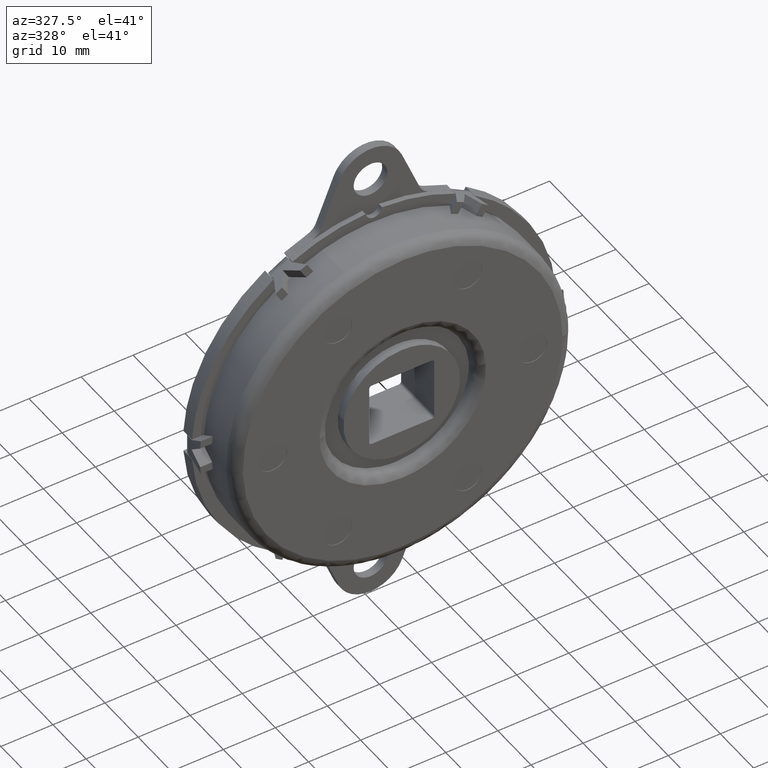
[diagram: clean part render]
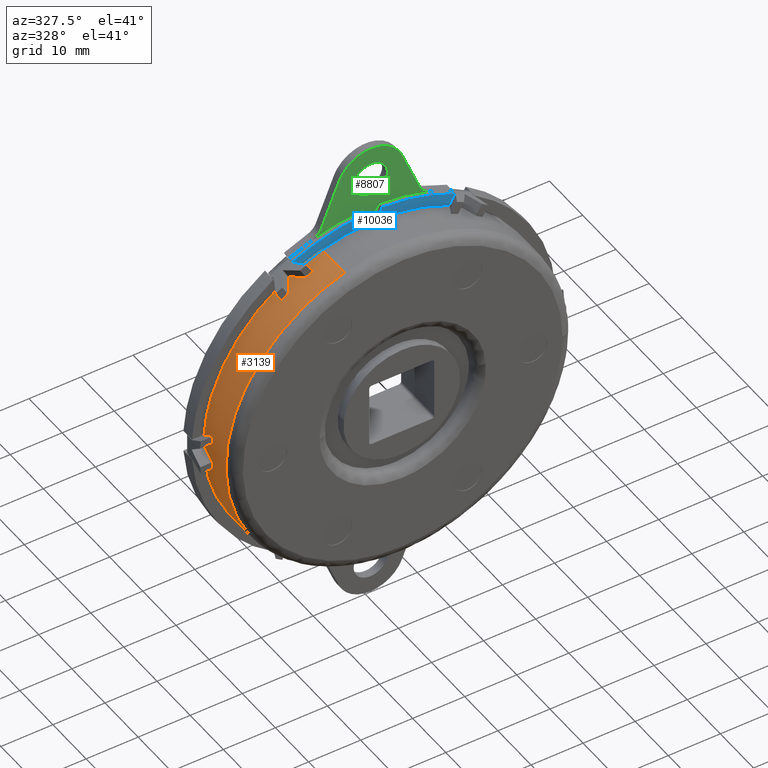
[diagram: same view with three faces highlighted in distinct colors, each labeled with its STEP entity id]
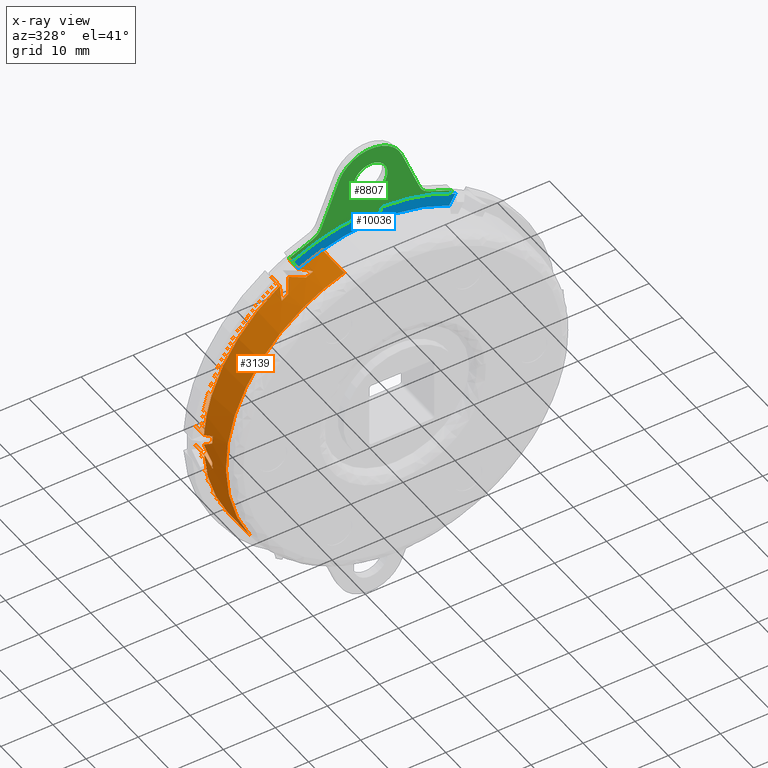
[diagram: x-ray of the same camera — body ghosted, the three highlighted faces saturated]
A machine part, auxiliary view with three faces highlighted in distinct colors.
The next image is the same camera in x-ray (body ghosted, the three faces saturated) — at least one of them is partly hidden behind the body in this view.
Their STEP definitions:

[orange] entity #3139 — the highlighted face is a freeform B-spline surface patch.
#2523=CARTESIAN_POINT('',(-9.911126072560093,0.232500000000649,31.161828893276134));
#2524=CARTESIAN_POINT('',(-13.610025779075269,0.232500000000649,29.985381212795552));
#2525=CARTESIAN_POINT('',(-16.930733918043060,0.232500000000649,27.975708194725389));
#2526=CARTESIAN_POINT('',(-44.906442112768460,0.232500000000649,11.044974276682328));
#2527=CARTESIAN_POINT('',(-27.975708194725389,0.232500000000649,-16.930733918043060));
#2528=CARTESIAN_POINT('',(-9.911126072560093,-9.538312500026613,31.161828893276134));
#2529=CARTESIAN_POINT('',(-13.610025779075269,-9.538312500026615,29.985381212795552));
#2530=CARTESIAN_POINT('',(-16.930733918043060,-9.538312500026613,27.975708194725389));
#2531=CARTESIAN_POINT('',(-44.906442112768460,-9.538312500026613,11.044974276682328));
#2532=CARTESIAN_POINT('',(-27.975708194725389,-9.538312500026613,-16.930733918043060));
#2540=(BOUNDED_SURFACE()B_SPLINE_SURFACE(2,1,((#2523,#2528),(#2524,#2529),(#2525,#2530),(#2526,#2531),(#2527,#2532)),.UNSPECIFIED.,.F.,.F.,.U.)B_SPLINE_SURFACE_WITH_KNOTS((3,2,3),(2,2),(0.0,8.668661433344145,62.847795391744967),(0.0,9.770812500027263),.UNSPECIFIED.)GEOMETRIC_REPRESENTATION_ITEM()RATIONAL_B_SPLINE_SURFACE(((0.921270302782944,0.921270302782944),(0.953137084989848,0.953137084989848),(1.0,1.0),(0.707106781186548,0.707106781186548),(1.0,1.0)))REPRESENTATION_ITEM('')SURFACE());
#2541=CARTESIAN_POINT('',(-27.975708191630559,-9.299999999999999,-16.930733923156868));
#2542=VERTEX_POINT('',#2541);
#2543=CARTESIAN_POINT('',(-9.911116520391543,-9.300000000002612,31.161831931372731));
#2544=VERTEX_POINT('',#2543);
#2545=CARTESIAN_POINT('',(-27.975708191630556,-9.299999999999999,-16.930733923156861));
#2546=CARTESIAN_POINT('',(-32.700000000000003,-9.299999999999999,-9.124491760922808));
#2547=CARTESIAN_POINT('',(-32.700000000000003,-9.299999999999999,-9.985231E-016));
#2548=CARTESIAN_POINT('',(-32.700000000000003,-9.299999999999999,23.913757426850960));
#2549=CARTESIAN_POINT('',(-9.911116520391543,-9.300000000002610,31.161831931372728));
#2557=(BOUNDED_CURVE()B_SPLINE_CURVE(2,(#2545,#2546,#2547,#2548,#2549),.UNSPECIFIED.,.F.,.U.)B_SPLINE_CURVE_WITH_KNOTS((3,2,3),(0.661566878939091,0.750000000000000,0.948444082053366),.UNSPECIFIED.)CURVE()GEOMETRIC_REPRESENTATION_ITEM()RATIONAL_B_SPLINE_CURVE((0.866085814693111,0.896394154091002,1.0,0.767508296211635,0.904109414369711))REPRESENTATION_ITEM(''));
#2558=EDGE_CURVE('',#2542,#2544,#2557,.T.);
#2559=ORIENTED_EDGE('',*,*,#2558,.T.);
#2560=CARTESIAN_POINT('',(-9.911141284202683,-2.599999999999935,31.161824551527118));
#2561=VERTEX_POINT('',#2560);
#2562=CARTESIAN_POINT('',(-9.911141284202683,-2.599999999999935,31.161824551527118));
#2563=CARTESIAN_POINT('',(-9.911116520391543,-9.300000000002612,31.161831931372731));
#2564=QUASI_UNIFORM_CURVE('',1,(#2562,#2563),.UNSPECIFIED.,.F.,.U.);
#2565=EDGE_CURVE('',#2561,#2544,#2564,.T.);
#2566=ORIENTED_EDGE('',*,*,#2565,.F.);
#2567=CARTESIAN_POINT('',(-14.497596722151600,-2.599999999999935,29.310574110410400));
#2568=VERTEX_POINT('',#2567);
#2569=CARTESIAN_POINT('',(-9.911141284202683,-2.599999999999935,31.161824551527118));
#2570=CARTESIAN_POINT('',(-12.274572009019773,-2.599999999999934,30.410126602537602));
#2571=CARTESIAN_POINT('',(-14.497596722151600,-2.599999999999935,29.310574110410400));
#2579=(BOUNDED_CURVE()B_SPLINE_CURVE(2,(#2569,#2570,#2571),.UNSPECIFIED.,.F.,.U.)B_SPLINE_CURVE_WITH_KNOTS((3,3),(0.831911339087718,1.0),.UNSPECIFIED.)CURVE()GEOMETRIC_REPRESENTATION_ITEM()RATIONAL_B_SPLINE_CURVE((0.971011618947447,0.982577241293320,1.0))REPRESENTATION_ITEM(''));
#2580=EDGE_CURVE('',#2561,#2568,#2579,.T.);
#2581=ORIENTED_EDGE('',*,*,#2580,.T.);
#2582=CARTESIAN_POINT('',(-14.497596722151560,-1.610000000000000,29.310574110410450));
#2583=VERTEX_POINT('',#2582);
#2584=CARTESIAN_POINT('',(-14.497596722151600,-2.599999999999935,29.310574110410400));
#2585=CARTESIAN_POINT('',(-14.497596722151560,-1.610000000000000,29.310574110410450));
#2586=QUASI_UNIFORM_CURVE('',1,(#2584,#2585),.UNSPECIFIED.,.F.,.U.);
#2587=EDGE_CURVE('',#2568,#2583,#2586,.T.);
#2588=ORIENTED_EDGE('',*,*,#2587,.T.);
#2589=CARTESIAN_POINT('',(-9.911126224100403,-1.610000000000000,31.161829369758589));
#2590=VERTEX_POINT('',#2589);
#2591=CARTESIAN_POINT('',(-9.911126224100403,-1.609999999999999,31.161829369758596));
#2592=CARTESIAN_POINT('',(-12.274564889433762,-1.610000000000000,30.410130157652805));
#2593=CARTESIAN_POINT('',(-14.497596722151551,-1.610000000000000,29.310574110410421));
#2601=(BOUNDED_CURVE()B_SPLINE_CURVE(2,(#2591,#2592,#2593),.UNSPECIFIED.,.F.,.U.)B_SPLINE_CURVE_WITH_KNOTS((3,3),(0.831910810136597,1.0),.UNSPECIFIED.)CURVE()GEOMETRIC_REPRESENTATION_ITEM()RATIONAL_B_SPLINE_CURVE((0.971011546156767,0.982577186466375,1.0))REPRESENTATION_ITEM(''));
#2602=EDGE_CURVE('',#2590,#2583,#2601,.T.);
#2603=ORIENTED_EDGE('',*,*,#2602,.F.);
#2604=CARTESIAN_POINT('',(-9.911141292130900,-1.599999999972468,31.161824577312029));
#2605=VERTEX_POINT('',#2604);
#2606=CARTESIAN_POINT('',(-9.911141292130900,-1.599999999972468,31.161824577312029));
#2607=CARTESIAN_POINT('',(-9.911126224100403,-1.610000000000000,31.161829369758589));
#2608=QUASI_UNIFORM_CURVE('',1,(#2606,#2607),.UNSPECIFIED.,.F.,.U.);
#2609=EDGE_CURVE('',#2605,#2590,#2608,.T.);
#2610=ORIENTED_EDGE('',*,*,#2609,.F.);
#2611=CARTESIAN_POINT('',(-14.497596722151560,-1.600000000000045,29.310574110410450));
#2612=VERTEX_POINT('',#2611);
#2613=CARTESIAN_POINT('',(-9.911141292130900,-1.599999999972468,31.161824577312025));
#2614=CARTESIAN_POINT('',(-12.274572016637046,-1.600000000000045,30.410126632395379));
#2615=CARTESIAN_POINT('',(-14.497596722151551,-1.600000000000045,29.310574110410421));
#2623=(BOUNDED_CURVE()B_SPLINE_CURVE(2,(#2613,#2614,#2615),.UNSPECIFIED.,.F.,.U.)B_SPLINE_CURVE_WITH_KNOTS((3,3),(0.831911339653649,1.0),.UNSPECIFIED.)CURVE()GEOMETRIC_REPRESENTATION_ITEM()RATIONAL_B_SPLINE_CURVE((0.971011619025327,0.982577241351980,1.0))REPRESENTATION_ITEM(''));
#2624=EDGE_CURVE('',#2605,#2612,#2623,.T.);
#2625=ORIENTED_EDGE('',*,*,#2624,.T.);
#2626=CARTESIAN_POINT('',(-14.497596722151600,0.0,29.310574110410400));
#2627=VERTEX_POINT('',#2626);
#2628=CARTESIAN_POINT('',(-14.497596722151560,-1.600000000000045,29.310574110410450));
#2629=CARTESIAN_POINT('',(-14.497596722151600,0.0,29.310574110410400));
#2630=QUASI_UNIFORM_CURVE('',1,(#2628,#2629),.UNSPECIFIED.,.F.,.U.);
#2631=EDGE_CURVE('',#2612,#2627,#2630,.T.);
#2632=ORIENTED_EDGE('',*,*,#2631,.T.);
#2633=CARTESIAN_POINT('',(-14.587340000607860,0.0,29.266014028334400));
#2634=VERTEX_POINT('',#2633);
#2635=CARTESIAN_POINT('',(-14.497596722151609,0.0,29.310574110410389));
#2636=CARTESIAN_POINT('',(-14.542502495903378,0.0,29.288362815745987));
#2637=CARTESIAN_POINT('',(-14.587340000607870,0.0,29.266014028334411));
#2645=(BOUNDED_CURVE()B_SPLINE_CURVE(2,(#2635,#2636,#2637),.UNSPECIFIED.,.F.,.U.)CURVE()GEOMETRIC_REPRESENTATION_ITEM()QUASI_UNIFORM_CURVE()RATIONAL_B_SPLINE_CURVE((1.0,0.999998826386876,1.0))REPRESENTATION_ITEM(''));
#2646=EDGE_CURVE('',#2627,#2634,#2645,.T.);
#2647=ORIENTED_EDGE('',*,*,#2646,.T.);
#2648=CARTESIAN_POINT('',(-14.587340000607860,-2.599999999999935,29.266014028334400));
#2649=VERTEX_POINT('',#2648);
#2650=CARTESIAN_POINT('',(-14.587340000607860,-2.599999999999935,29.266014028334400));
#2651=CARTESIAN_POINT('',(-14.587340000607860,0.0,29.266014028334400));
#2652=QUASI_UNIFORM_CURVE('',1,(#2650,#2651),.UNSPECIFIED.,.F.,.U.);
#2653=EDGE_CURVE('',#2649,#2634,#2652,.T.);
#2654=ORIENTED_EDGE('',*,*,#2653,.F.);
#2655=CARTESIAN_POINT('',(-14.561896972792420,-2.599999999999935,29.278682039220602));
#2656=VERTEX_POINT('',#2655);
#2657=CARTESIAN_POINT('',(-14.561896972792439,-2.599999999999935,29.278682039220609));
#2658=CARTESIAN_POINT('',(-14.574621239407177,-2.599999999999935,29.272353562438422));
#2659=CARTESIAN_POINT('',(-14.587340000607870,-2.599999999999935,29.266014028334411));
#2667=(BOUNDED_CURVE()B_SPLINE_CURVE(2,(#2657,#2658,#2659),.UNSPECIFIED.,.F.,.U.)CURVE()GEOMETRIC_REPRESENTATION_ITEM()QUASI_UNIFORM_CURVE()RATIONAL_B_SPLINE_CURVE((1.0,0.999999905565124,1.0))REPRESENTATION_ITEM(''));
#2668=EDGE_CURVE('',#2656,#2649,#2667,.T.);
#2669=ORIENTED_EDGE('',*,*,#2668,.F.);
#2670=CARTESIAN_POINT('',(-13.224986873979381,-5.062030000000160,29.906349195163749));
#2671=VERTEX_POINT('',#2670);
#2672=CARTESIAN_POINT('',(-13.224986873979381,-5.062030000000160,29.906349195163749));
#2673=CARTESIAN_POINT('',(-13.900531007889809,-3.833374617001016,29.607615104253000));
#2674=CARTESIAN_POINT('',(-14.561896972792420,-2.599999999999935,29.278682039220602));
#2682=(BOUNDED_CURVE()B_SPLINE_CURVE(2,(#2672,#2673,#2674),.UNSPECIFIED.,.F.,.U.)CURVE()GEOMETRIC_REPRESENTATION_ITEM()QUASI_UNIFORM_CURVE()RATIONAL_B_SPLINE_CURVE((1.0,0.999744974164710,1.0))REPRESENTATION_ITEM(''));
#2683=EDGE_CURVE('',#2671,#2656,#2682,.T.);
#2684=ORIENTED_EDGE('',*,*,#2683,.F.);
#2685=CARTESIAN_POINT('',(-14.587339499669660,-5.062030000000160,29.266013160684100));
#2686=VERTEX_POINT('',#2685);
#2687=CARTESIAN_POINT('',(-14.587339499669660,-5.062030000000160,29.266013160684100));
#2688=CARTESIAN_POINT('',(-13.913534562946600,-5.062030000000160,29.601864214757910));
#2689=CARTESIAN_POINT('',(-13.224986873979400,-5.062030000000160,29.906349195163770));
#2697=(BOUNDED_CURVE()B_SPLINE_CURVE(2,(#2687,#2688,#2689),.UNSPECIFIED.,.F.,.U.)CURVE()GEOMETRIC_REPRESENTATION_ITEM()QUASI_UNIFORM_CURVE()RATIONAL_B_SPLINE_CURVE((1.0,0.999735065425534,1.0))REPRESENTATION_ITEM(''));
#2698=EDGE_CURVE('',#2686,#2671,#2697,.T.);
#2699=ORIENTED_EDGE('',*,*,#2698,.F.);
#2700=CARTESIAN_POINT('',(-16.317232154714500,-2.599999999999965,28.337923967876549));
#2701=VERTEX_POINT('',#2700);
#2702=CARTESIAN_POINT('',(-16.317232154714500,-2.599999999999965,28.337923967876549));
#2703=CARTESIAN_POINT('',(-15.466221460405498,-3.832167991774810,28.827943599552658));
#2704=CARTESIAN_POINT('',(-14.587339499669660,-5.062030000000160,29.266013160684100));
#2712=(BOUNDED_CURVE()B_SPLINE_CURVE(2,(#2702,#2703,#2704),.UNSPECIFIED.,.F.,.U.)CURVE()GEOMETRIC_REPRESENTATION_ITEM()QUASI_UNIFORM_CURVE()RATIONAL_B_SPLINE_CURVE((1.0,0.999549380120241,1.0))REPRESENTATION_ITEM(''));
#2713=EDGE_CURVE('',#2701,#2686,#2712,.T.);
#2714=ORIENTED_EDGE('',*,*,#2713,.F.);
#2715=CARTESIAN_POINT('',(-16.382745969335598,-2.599999999999965,28.300099549369399));
#2716=VERTEX_POINT('',#2715);
#2717=CARTESIAN_POINT('',(-16.317232154714489,-2.599999999999965,28.337923967876542));
#2718=CARTESIAN_POINT('',(-16.350010937982834,-2.599999999999965,28.319049648891671));
#2719=CARTESIAN_POINT('',(-16.382745969335591,-2.599999999999965,28.300099549369410));
#2727=(BOUNDED_CURVE()B_SPLINE_CURVE(2,(#2717,#2718,#2719),.UNSPECIFIED.,.F.,.U.)CURVE()GEOMETRIC_REPRESENTATION_ITEM()QUASI_UNIFORM_CURVE()RATIONAL_B_SPLINE_CURVE((1.0,0.999999331010711,1.0))REPRESENTATION_ITEM(''));
#2728=EDGE_CURVE('',#2701,#2716,#2727,.T.);
#2729=ORIENTED_EDGE('',*,*,#2728,.T.);
#2730=CARTESIAN_POINT('',(-18.051441114807702,-5.062030000000160,27.266013160684651));
#2731=VERTEX_POINT('',#2730);
#2732=CARTESIAN_POINT('',(-18.051441114807702,-5.062030000000160,27.266013160684651));
#2733=CARTESIAN_POINT('',(-17.232620765883606,-3.832167991788125,27.808112485037793));
#2734=CARTESIAN_POINT('',(-16.382745969335620,-2.599999999999945,28.300099549369399));
#2742=(BOUNDED_CURVE()B_SPLINE_CURVE(2,(#2732,#2733,#2734),.UNSPECIFIED.,.F.,.U.)CURVE()GEOMETRIC_REPRESENTATION_ITEM()QUASI_UNIFORM_CURVE()RATIONAL_B_SPLINE_CURVE((1.0,0.999549380119082,1.0))REPRESENTATION_ITEM(''));
#2743=EDGE_CURVE('',#2731,#2716,#2742,.T.);
#2744=ORIENTED_EDGE('',*,*,#2743,.F.);
#2745=CARTESIAN_POINT('',(-19.287172822463450,-5.062030000000160,26.406343262868251));
#2746=VERTEX_POINT('',#2745);
#2747=CARTESIAN_POINT('',(-19.287172822463461,-5.062030000000160,26.406343262868241));
#2748=CARTESIAN_POINT('',(-18.679203323310833,-5.062030000000160,26.850403717745074));
#2749=CARTESIAN_POINT('',(-18.051441114807709,-5.062030000000160,27.266013160684668));
#2757=(BOUNDED_CURVE()B_SPLINE_CURVE(2,(#2747,#2748,#2749),.UNSPECIFIED.,.F.,.U.)CURVE()GEOMETRIC_REPRESENTATION_ITEM()QUASI_UNIFORM_CURVE()RATIONAL_B_SPLINE_CURVE((1.0,0.999735061885713,1.0))REPRESENTATION_ITEM(''));
#2758=EDGE_CURVE('',#2746,#2731,#2757,.T.);
#2759=ORIENTED_EDGE('',*,*,#2758,.F.);
#2760=CARTESIAN_POINT('',(-18.075134106803699,-2.599999999999935,27.250313620600100));
#2761=VERTEX_POINT('',#2760);
#2762=CARTESIAN_POINT('',(-18.075134106803699,-2.599999999999935,27.250313620600100));
#2763=CARTESIAN_POINT('',(-18.690685591284939,-3.833374637159425,26.842017693973279));
#2764=CARTESIAN_POINT('',(-19.287172822463450,-5.062030000000160,26.406343262868251));
#2772=(BOUNDED_CURVE()B_SPLINE_CURVE(2,(#2762,#2763,#2764),.UNSPECIFIED.,.F.,.U.)CURVE()GEOMETRIC_REPRESENTATION_ITEM()QUASI_UNIFORM_CURVE()RATIONAL_B_SPLINE_CURVE((1.0,0.999744970756971,1.0))REPRESENTATION_ITEM(''));
#2773=EDGE_CURVE('',#2761,#2746,#2772,.T.);
#2774=ORIENTED_EDGE('',*,*,#2773,.F.);
#2775=CARTESIAN_POINT('',(-18.051441615745450,-2.599999999999935,27.266014028334499));
#2776=VERTEX_POINT('',#2775);
#2777=CARTESIAN_POINT('',(-18.051441615745460,-2.599999999999935,27.266014028334499));
#2778=CARTESIAN_POINT('',(-18.063291272928677,-2.599999999999935,27.258168972779735));
#2779=CARTESIAN_POINT('',(-18.075134106803691,-2.599999999999935,27.250313620600089));
#2787=(BOUNDED_CURVE()B_SPLINE_CURVE(2,(#2777,#2778,#2779),.UNSPECIFIED.,.F.,.U.)CURVE()GEOMETRIC_REPRESENTATION_ITEM()QUASI_UNIFORM_CURVE()RATIONAL_B_SPLINE_CURVE((1.0,0.999999905563864,1.0))REPRESENTATION_ITEM(''));
#2788=EDGE_CURVE('',#2776,#2761,#2787,.T.);
#2789=ORIENTED_EDGE('',*,*,#2788,.F.);
#2790=CARTESIAN_POINT('',(-18.051441615745450,0.0,27.266014028334499));
#2791=VERTEX_POINT('',#2790);
#2792=CARTESIAN_POINT('',(-18.051441615745450,-2.599999999999935,27.266014028334499));
#2793=CARTESIAN_POINT('',(-18.051441615745450,0.0,27.266014028334499));
#2794=QUASI_UNIFORM_CURVE('',1,(#2792,#2793),.UNSPECIFIED.,.F.,.U.);
#2795=EDGE_CURVE('',#2776,#2791,#2794,.T.);
#2796=ORIENTED_EDGE('',*,*,#2795,.T.);
#2797=CARTESIAN_POINT('',(-18.134903418046100,0.0,27.210574110410501));
#2798=VERTEX_POINT('',#2797);
#2799=CARTESIAN_POINT('',(-18.051441615745460,0.0,27.266014028334499));
#2800=CARTESIAN_POINT('',(-18.093214985740161,0.0,27.238358003923729));
#2801=CARTESIAN_POINT('',(-18.134903418046079,0.0,27.210574110410491));
#2809=(BOUNDED_CURVE()B_SPLINE_CURVE(2,(#2799,#2800,#2801),.UNSPECIFIED.,.F.,.U.)CURVE()GEOMETRIC_REPRESENTATION_ITEM()QUASI_UNIFORM_CURVE()RATIONAL_B_SPLINE_CURVE((1.0,0.999998826386876,1.0))REPRESENTATION_ITEM(''));
#2810=EDGE_CURVE('',#2791,#2798,#2809,.T.);
#2811=ORIENTED_EDGE('',*,*,#2810,.T.);
#2812=CARTESIAN_POINT('',(-18.134903418046100,-1.599999999999935,27.210574110410501));
#2813=VERTEX_POINT('',#2812);
#2814=CARTESIAN_POINT('',(-18.134903418046100,-1.599999999999935,27.210574110410501));
#2815=CARTESIAN_POINT('',(-18.134903418046100,0.0,27.210574110410501));
#2816=QUASI_UNIFORM_CURVE('',1,(#2814,#2815),.UNSPECIFIED.,.F.,.U.);
#2817=EDGE_CURVE('',#2813,#2798,#2816,.T.);
#2818=ORIENTED_EDGE('',*,*,#2817,.F.);
#2819=CARTESIAN_POINT('',(-32.632500140197699,-1.600000000000045,2.099999999999960));
#2820=VERTEX_POINT('',#2819);
#2821=CARTESIAN_POINT('',(-18.134903418046100,-1.599999999999935,27.210574110410501));
#2822=CARTESIAN_POINT('',(-31.593798100386579,-1.600000000000045,18.240687837980907));
#2823=CARTESIAN_POINT('',(-32.632500140197678,-1.600000000000045,2.099999999999963));
#2831=(BOUNDED_CURVE()B_SPLINE_CURVE(2,(#2821,#2822,#2823),.UNSPECIFIED.,.F.,.U.)CURVE()GEOMETRIC_REPRESENTATION_ITEM()QUASI_UNIFORM_CURVE()RATIONAL_B_SPLINE_CURVE((1.0,0.896347804711395,1.0))REPRESENTATION_ITEM(''));
#2832=EDGE_CURVE('',#2813,#2820,#2831,.T.);
#2833=ORIENTED_EDGE('',*,*,#2832,.T.);
#2834=CARTESIAN_POINT('',(-32.632500140197699,0.0,2.099999999999910));
#2835=VERTEX_POINT('',#2834);
#2836=CARTESIAN_POINT('',(-32.632500140197699,-1.600000000000045,2.099999999999960));
#2837=CARTESIAN_POINT('',(-32.632500140197699,0.0,2.099999999999910));
#2838=QUASI_UNIFORM_CURVE('',1,(#2836,#2837),.UNSPECIFIED.,.F.,.U.);
#2839=EDGE_CURVE('',#2820,#2835,#2838,.T.);
#2840=ORIENTED_EDGE('',*,*,#2839,.T.);
#2841=CARTESIAN_POINT('',(-32.638781616353299,0.0,1.999999999999905));
#2842=VERTEX_POINT('',#2841);
#2843=CARTESIAN_POINT('',(-32.632500140197678,0.0,2.099999999999905));
#2844=CARTESIAN_POINT('',(-32.635717481643226,0.0,2.050004811822229));
#2845=CARTESIAN_POINT('',(-32.638781616353292,0.0,1.999999999999899));
#2853=(BOUNDED_CURVE()B_SPLINE_CURVE(2,(#2843,#2844,#2845),.UNSPECIFIED.,.F.,.U.)CURVE()GEOMETRIC_REPRESENTATION_ITEM()QUASI_UNIFORM_CURVE()RATIONAL_B_SPLINE_CURVE((1.0,0.999998826386876,1.0))REPRESENTATION_ITEM(''));
#2854=EDGE_CURVE('',#2835,#2842,#2853,.T.);
#2855=ORIENTED_EDGE('',*,*,#2854,.T.);
#2856=CARTESIAN_POINT('',(-32.638781616353299,-2.599999999999935,1.999999999999905));
#2857=VERTEX_POINT('',#2856);
#2858=CARTESIAN_POINT('',(-32.638781616353299,-2.599999999999935,1.999999999999905));
#2859=CARTESIAN_POINT('',(-32.638781616353299,0.0,1.999999999999905));
#2860=QUASI_UNIFORM_CURVE('',1,(#2858,#2859),.UNSPECIFIED.,.F.,.U.);
#2861=EDGE_CURVE('',#2857,#2842,#2860,.T.);
#2862=ORIENTED_EDGE('',*,*,#2861,.F.);
#2863=CARTESIAN_POINT('',(-32.637030921688449,-2.599999999999935,2.028368313880375));
#2864=VERTEX_POINT('',#2863);
#2865=CARTESIAN_POINT('',(-32.637030921688428,-2.599999999999935,2.028368313880378));
#2866=CARTESIAN_POINT('',(-32.637912433335146,-2.599999999999934,2.014184537356819));
#2867=CARTESIAN_POINT('',(-32.638781616353292,-2.599999999999935,1.999999999999899));
#2875=(BOUNDED_CURVE()B_SPLINE_CURVE(2,(#2865,#2866,#2867),.UNSPECIFIED.,.F.,.U.)CURVE()GEOMETRIC_REPRESENTATION_ITEM()QUASI_UNIFORM_CURVE()RATIONAL_B_SPLINE_CURVE((1.0,0.999999905565124,1.0))REPRESENTATION_ITEM(''));
#2876=EDGE_CURVE('',#2864,#2857,#2875,.T.);
#2877=ORIENTED_EDGE('',*,*,#2876,.F.);
#2878=CARTESIAN_POINT('',(-32.512151574449803,-5.062030000000160,3.500000000000000));
#2879=VERTEX_POINT('',#2878);
#2880=CARTESIAN_POINT('',(-32.512151574449803,-5.062030000000160,3.500000000000000));
#2881=CARTESIAN_POINT('',(-32.591212329699864,-3.833374617000938,2.765594573200597));
#2882=CARTESIAN_POINT('',(-32.637030921688449,-2.599999999999935,2.028368313880375));
#2890=(BOUNDED_CURVE()B_SPLINE_CURVE(2,(#2880,#2881,#2882),.UNSPECIFIED.,.F.,.U.)CURVE()GEOMETRIC_REPRESENTATION_ITEM()QUASI_UNIFORM_CURVE()RATIONAL_B_SPLINE_CURVE((1.0,0.999744974165007,1.0))REPRESENTATION_ITEM(''));
#2891=EDGE_CURVE('',#2879,#2864,#2890,.T.);
#2892=ORIENTED_EDGE('',*,*,#2891,.F.);
#2893=CARTESIAN_POINT('',(-32.638780614477547,-5.062030000000160,1.999999999999915));
#2894=VERTEX_POINT('',#2893);
#2895=CARTESIAN_POINT('',(-32.638780614477618,-5.062030000000160,1.999999999999917));
#2896=CARTESIAN_POINT('',(-32.592733690831139,-5.062030000000160,2.751457719434499));
#2897=CARTESIAN_POINT('',(-32.512151574449817,-5.062030000000160,3.500000000000008));
#2905=(BOUNDED_CURVE()B_SPLINE_CURVE(2,(#2895,#2896,#2897),.UNSPECIFIED.,.F.,.U.)CURVE()GEOMETRIC_REPRESENTATION_ITEM()QUASI_UNIFORM_CURVE()RATIONAL_B_SPLINE_CURVE((1.0,0.999735065425534,1.0))REPRESENTATION_ITEM(''));
#2906=EDGE_CURVE('',#2894,#2879,#2905,.T.);
#2907=ORIENTED_EDGE('',*,*,#2906,.F.);
#2908=CARTESIAN_POINT('',(-32.699978124050247,-2.599999999999965,0.037824418507172));
#2909=VERTEX_POINT('',#2908);
#2910=CARTESIAN_POINT('',(-32.699978124050247,-2.599999999999965,0.037824418507172));
#2911=CARTESIAN_POINT('',(-32.698842226279787,-3.832167991786701,1.019831114518535));
#2912=CARTESIAN_POINT('',(-32.638780614477618,-5.062030000000069,1.999999999999976));
#2920=(BOUNDED_CURVE()B_SPLINE_CURVE(2,(#2910,#2911,#2912),.UNSPECIFIED.,.F.,.U.)CURVE()GEOMETRIC_REPRESENTATION_ITEM()QUASI_UNIFORM_CURVE()RATIONAL_B_SPLINE_CURVE((1.0,0.999549380118807,1.0))REPRESENTATION_ITEM(''));
#2921=EDGE_CURVE('',#2909,#2894,#2920,.T.);
#2922=ORIENTED_EDGE('',*,*,#2921,.F.);
#2923=CARTESIAN_POINT('',(-32.699978124050247,-2.599999999999965,-0.037824418507166));
#2924=VERTEX_POINT('',#2923);
#2925=CARTESIAN_POINT('',(-32.699978124050247,-2.599999999999965,0.037824418507181));
#2926=CARTESIAN_POINT('',(-32.700021875964396,-2.599999999999965,4.005208E-014));
#2927=CARTESIAN_POINT('',(-32.699978124050247,-2.599999999999965,-0.037824418507142));
#2935=(BOUNDED_CURVE()B_SPLINE_CURVE(2,(#2925,#2926,#2927),.UNSPECIFIED.,.F.,.U.)CURVE()GEOMETRIC_REPRESENTATION_ITEM()QUASI_UNIFORM_CURVE()RATIONAL_B_SPLINE_CURVE((1.0,0.999999331010711,1.0))REPRESENTATION_ITEM(''));
#2936=EDGE_CURVE('',#2909,#2924,#2935,.T.);
#2937=ORIENTED_EDGE('',*,*,#2936,.T.);
#2938=CARTESIAN_POINT('',(-32.638780614477596,-5.062030000000160,-2.0));
#2939=VERTEX_POINT('',#2938);
#2940=CARTESIAN_POINT('',(-32.638780614477596,-5.062030000000160,-2.0));
#2941=CARTESIAN_POINT('',(-32.698842226279737,-3.832167991787998,-1.019831114519540));
#2942=CARTESIAN_POINT('',(-32.699978124050247,-2.599999999999966,-0.037824418507165));
#2950=(BOUNDED_CURVE()B_SPLINE_CURVE(2,(#2940,#2941,#2942),.UNSPECIFIED.,.F.,.U.)CURVE()GEOMETRIC_REPRESENTATION_ITEM()QUASI_UNIFORM_CURVE()RATIONAL_B_SPLINE_CURVE((1.0,0.999549380119080,1.0))REPRESENTATION_ITEM(''));
#2951=EDGE_CURVE('',#2939,#2924,#2950,.T.);
#2952=ORIENTED_EDGE('',*,*,#2951,.F.);
#2953=CARTESIAN_POINT('',(-32.512150497927699,-5.062030000000160,-3.500010000000000));
#2954=VERTEX_POINT('',#2953);
#2955=CARTESIAN_POINT('',(-32.512150497927699,-5.062030000000160,-3.500010000000017));
#2956=CARTESIAN_POINT('',(-32.592733383090781,-5.062030000000160,-2.751462741569503));
#2957=CARTESIAN_POINT('',(-32.638780614477611,-5.062030000000160,-2.000000000000018));
#2965=(BOUNDED_CURVE()B_SPLINE_CURVE(2,(#2955,#2956,#2957),.UNSPECIFIED.,.F.,.U.)CURVE()GEOMETRIC_REPRESENTATION_ITEM()QUASI_UNIFORM_CURVE()RATIONAL_B_SPLINE_CURVE((1.0,0.999735061885713,1.0))REPRESENTATION_ITEM(''));
#2966=EDGE_CURVE('',#2954,#2939,#2965,.T.);
#2967=ORIENTED_EDGE('',*,*,#2966,.F.);
#2968=CARTESIAN_POINT('',(-32.637030909934651,-2.599999999999935,-2.028368503002470));
#2969=VERTEX_POINT('',#2968);
#2970=CARTESIAN_POINT('',(-32.637030909934651,-2.599999999999935,-2.028368503002470));
#2971=CARTESIAN_POINT('',(-32.591212007454736,-3.833374637159470,-2.765599689213881));
#2972=CARTESIAN_POINT('',(-32.512150497927699,-5.062030000000160,-3.500010000000000));
#2980=(BOUNDED_CURVE()B_SPLINE_CURVE(2,(#2970,#2971,#2972),.UNSPECIFIED.,.F.,.U.)CURVE()GEOMETRIC_REPRESENTATION_ITEM()QUASI_UNIFORM_CURVE()RATIONAL_B_SPLINE_CURVE((1.0,0.999744970758395,1.0))REPRESENTATION_ITEM(''));
#2981=EDGE_CURVE('',#2969,#2954,#2980,.T.);
#2982=ORIENTED_EDGE('',*,*,#2981,.F.);
#2983=CARTESIAN_POINT('',(-32.638781616353299,-2.599999999999935,-1.999999999999885));
#2984=VERTEX_POINT('',#2983);
#2985=CARTESIAN_POINT('',(-32.638781616353292,-2.599999999999935,-1.999999999999894));
#2986=CARTESIAN_POINT('',(-32.637912427540108,-2.599999999999935,-2.014184631928402));
#2987=CARTESIAN_POINT('',(-32.637030909934630,-2.599999999999935,-2.028368503002461));
#2995=(BOUNDED_CURVE()B_SPLINE_CURVE(2,(#2985,#2986,#2987),.UNSPECIFIED.,.F.,.U.)CURVE()GEOMETRIC_REPRESENTATION_ITEM()QUASI_UNIFORM_CURVE()RATIONAL_B_SPLINE_CURVE((1.0,0.999999905563864,1.0))REPRESENTATION_ITEM(''));
#2996=EDGE_CURVE('',#2984,#2969,#2995,.T.);
#2997=ORIENTED_EDGE('',*,*,#2996,.F.);
#2998=CARTESIAN_POINT('',(-32.638781616353299,0.0,-1.999999999999885));
#2999=VERTEX_POINT('',#2998);
#3000=CARTESIAN_POINT('',(-32.638781616353299,-2.599999999999935,-1.999999999999885));
#3001=CARTESIAN_POINT('',(-32.638781616353299,0.0,-1.999999999999885));
#3002=QUASI_UNIFORM_CURVE('',1,(#3000,#3001),.UNSPECIFIED.,.F.,.U.);
#3003=EDGE_CURVE('',#2984,#2999,#3002,.T.);
#3004=ORIENTED_EDGE('',*,*,#3003,.T.);
#3005=CARTESIAN_POINT('',(-32.632500140197699,0.0,-2.099999999999885));
#3006=VERTEX_POINT('',#3005);
#3007=CARTESIAN_POINT('',(-32.638781616353292,0.0,-1.999999999999894));
#3008=CARTESIAN_POINT('',(-32.635717481643226,0.0,-2.050004811822230));
#3009=CARTESIAN_POINT('',(-32.632500140197678,0.0,-2.099999999999901));
#3017=(BOUNDED_CURVE()B_SPLINE_CURVE(2,(#3007,#3008,#3009),.UNSPECIFIED.,.F.,.U.)CURVE()GEOMETRIC_REPRESENTATION_ITEM()QUASI_UNIFORM_CURVE()RATIONAL_B_SPLINE_CURVE((1.0,0.999998826386876,1.0))REPRESENTATION_ITEM(''));
#3018=EDGE_CURVE('',#2999,#3006,#3017,.T.);
#3019=ORIENTED_EDGE('',*,*,#3018,.T.);
#3020=CARTESIAN_POINT('',(-32.632500140197699,-1.599999999999935,-2.099999999999885));
#3021=VERTEX_POINT('',#3020);
#3022=CARTESIAN_POINT('',(-32.632500140197699,-1.599999999999935,-2.099999999999885));
#3023=CARTESIAN_POINT('',(-32.632500140197699,0.0,-2.099999999999885));
#3024=QUASI_UNIFORM_CURVE('',1,(#3022,#3023),.UNSPECIFIED.,.F.,.U.);
#3025=EDGE_CURVE('',#3021,#3006,#3024,.T.);
#3026=ORIENTED_EDGE('',*,*,#3025,.F.);
#3027=CARTESIAN_POINT('',(-27.975707965943592,-1.599999999985357,-16.930735261772860));
#3028=VERTEX_POINT('',#3027);
#3029=CARTESIAN_POINT('',(-32.632500140197678,-1.600000000000045,-2.099999999999901));
#3030=CARTESIAN_POINT('',(-32.118633366261491,-1.600000000000045,-10.085122653579132));
#3031=CARTESIAN_POINT('',(-27.975707965943585,-1.599999999985357,-16.930735261772860));
#3039=(BOUNDED_CURVE()B_SPLINE_CURVE(2,(#3029,#3030,#3031),.UNSPECIFIED.,.F.,.U.)B_SPLINE_CURVE_WITH_KNOTS((3,3),(0.0,0.522062257430673),.UNSPECIFIED.)CURVE()GEOMETRIC_REPRESENTATION_ITEM()RATIONAL_B_SPLINE_CURVE((1.0,0.945887100939986,0.948274806358750))REPRESENTATION_ITEM(''));
#3040=EDGE_CURVE('',#3021,#3028,#3039,.T.);
#3041=ORIENTED_EDGE('',*,*,#3040,.T.);
#3042=CARTESIAN_POINT('',(-27.975707799054781,-1.610000000004837,-16.930735537533590));
#3043=VERTEX_POINT('',#3042);
#3044=CARTESIAN_POINT('',(-27.975707965943592,-1.599999999985357,-16.930735261772860));
#3045=CARTESIAN_POINT('',(-27.975707799054781,-1.610000000004837,-16.930735537533590));
#3046=QUASI_UNIFORM_CURVE('',1,(#3044,#3045),.UNSPECIFIED.,.F.,.U.);
#3047=EDGE_CURVE('',#3028,#3043,#3046,.T.);
#3048=ORIENTED_EDGE('',*,*,#3047,.T.);
#3049=CARTESIAN_POINT('',(-32.632500140197664,-1.610000000000000,-2.100000000000000));
#3050=VERTEX_POINT('',#3049);
#3051=CARTESIAN_POINT('',(-32.632500140197671,-1.610000000000000,-2.100000000000017));
#3052=CARTESIAN_POINT('',(-32.118633355291720,-1.610000000000001,-10.085122824041083));
#3053=CARTESIAN_POINT('',(-27.975707799054781,-1.610000000004837,-16.930735537533597));
#3061=(BOUNDED_CURVE()B_SPLINE_CURVE(2,(#3051,#3052,#3053),.UNSPECIFIED.,.F.,.U.)B_SPLINE_CURVE_WITH_KNOTS((3,3),(0.0,0.522062267972290),.UNSPECIFIED.)CURVE()GEOMETRIC_REPRESENTATION_ITEM()RATIONAL_B_SPLINE_CURVE((1.0,0.945887099847325,0.948274806455177))REPRESENTATION_ITEM(''));
#3062=EDGE_CURVE('',#3050,#3043,#3061,.T.);
#3063=ORIENTED_EDGE('',*,*,#3062,.F.);
#3064=CARTESIAN_POINT('',(-32.632500140197699,-2.599999999999935,-2.099999999999885));
#3065=VERTEX_POINT('',#3064);
#3066=CARTESIAN_POINT('',(-32.632500140197699,-2.599999999999935,-2.099999999999885));
#3067=CARTESIAN_POINT('',(-32.632500140197664,-1.610000000000000,-2.100000000000000));
#3068=QUASI_UNIFORM_CURVE('',1,(#3066,#3067),.UNSPECIFIED.,.F.,.U.);
#3069=EDGE_CURVE('',#3065,#3050,#3068,.T.);
#3070=ORIENTED_EDGE('',*,*,#3069,.F.);
#3071=CARTESIAN_POINT('',(-27.975708082112799,-2.599999999999935,-16.930734969949199));
#3072=VERTEX_POINT('',#3071);
#3073=CARTESIAN_POINT('',(-32.632500140197699,-2.599999999999935,-2.099999999999885));
#3074=CARTESIAN_POINT('',(-32.118633282924961,-2.599999999999935,-10.085122434365235));
#3075=CARTESIAN_POINT('',(-27.975708082112796,-2.599999999999935,-16.930734969949196));
#3083=(BOUNDED_CURVE()B_SPLINE_CURVE(2,(#3073,#3074,#3075),.UNSPECIFIED.,.F.,.U.)B_SPLINE_CURVE_WITH_KNOTS((3,3),(0.0,0.522062247228669),.UNSPECIFIED.)CURVE()GEOMETRIC_REPRESENTATION_ITEM()RATIONAL_B_SPLINE_CURVE((1.0,0.945887101997446,0.948274806265430))REPRESENTATION_ITEM(''));
#3084=EDGE_CURVE('',#3065,#3072,#3083,.T.);
#3085=ORIENTED_EDGE('',*,*,#3084,.T.);
#3086=CARTESIAN_POINT('',(-27.975708082112799,-2.599999999999935,-16.930734969949199));
#3087=CARTESIAN_POINT('',(-27.975708191630559,-9.299999999999999,-16.930733923156868));
#3088=QUASI_UNIFORM_CURVE('',1,(#3086,#3087),.UNSPECIFIED.,.F.,.U.);
#3089=EDGE_CURVE('',#3072,#2542,#3088,.T.);
#3090=ORIENTED_EDGE('',*,*,#3089,.T.);
#3091=EDGE_LOOP('',(#2559,#2566,#2581,#2588,#2603,#2610,#2625,#2632,#2647,#2654,#2669,#2684,#2699,#2714,#2729,#2744,#2759,#2774,#2789,#2796,#2811,#2818,#2833,#2840,#2855,#2862,#2877,#2892,#2907,#2922,#2937,#2952,#2967,#2982,#2997,#3004,#3019,#3026,#3041,#3048,#3063,#3070,#3085,#3090));
#3092=FACE_OUTER_BOUND('',#3091,.T.);
#3093=CARTESIAN_POINT('',(-18.134903418046100,-2.599999999999935,27.210574110410501));
#3094=VERTEX_POINT('',#3093);
#3095=CARTESIAN_POINT('',(-32.632500140197699,-2.599999999999935,2.099999999999910));
#3096=VERTEX_POINT('',#3095);
#3097=CARTESIAN_POINT('',(-18.134903418046100,-2.599999999999935,27.210574110410501));
#3098=CARTESIAN_POINT('',(-31.593797910475427,-2.599999999999936,18.240687728335619));
#3099=CARTESIAN_POINT('',(-32.632500140197699,-2.599999999999935,2.099999999999910));
#3107=(BOUNDED_CURVE()B_SPLINE_CURVE(2,(#3097,#3098,#3099),.UNSPECIFIED.,.F.,.U.)CURVE()GEOMETRIC_REPRESENTATION_ITEM()QUASI_UNIFORM_CURVE()RATIONAL_B_SPLINE_CURVE((1.0,0.896347804711394,1.0))REPRESENTATION_ITEM(''));
#3108=EDGE_CURVE('',#3094,#3096,#3107,.T.);
#3109=ORIENTED_EDGE('',*,*,#3108,.T.);
#3110=CARTESIAN_POINT('',(-32.632500140197699,-1.610000000000000,2.099999999999960));
#3111=VERTEX_POINT('',#3110);
#3112=CARTESIAN_POINT('',(-32.632500140197699,-2.599999999999935,2.099999999999910));
#3113=CARTESIAN_POINT('',(-32.632500140197699,-1.610000000000000,2.099999999999960));
#3114=QUASI_UNIFORM_CURVE('',1,(#3112,#3113),.UNSPECIFIED.,.F.,.U.);
#3115=EDGE_CURVE('',#3096,#3111,#3114,.T.);
#3116=ORIENTED_EDGE('',*,*,#3115,.T.);
#3117=CARTESIAN_POINT('',(-18.134903418046250,-1.610000000000000,27.210574110410398));
#3118=VERTEX_POINT('',#3117);
#3119=CARTESIAN_POINT('',(-18.134903418046250,-1.610000000000000,27.210574110410370));
#3120=CARTESIAN_POINT('',(-31.593798100386586,-1.610000000000000,18.240687837980779));
#3121=CARTESIAN_POINT('',(-32.632500140197678,-1.610000000000000,2.099999999999963));
#3129=(BOUNDED_CURVE()B_SPLINE_CURVE(2,(#3119,#3120,#3121),.UNSPECIFIED.,.F.,.U.)CURVE()GEOMETRIC_REPRESENTATION_ITEM()QUASI_UNIFORM_CURVE()RATIONAL_B_SPLINE_CURVE((1.0,0.896347804711396,1.0))REPRESENTATION_ITEM(''));
#3130=EDGE_CURVE('',#3118,#3111,#3129,.T.);
#3131=ORIENTED_EDGE('',*,*,#3130,.F.);
#3132=CARTESIAN_POINT('',(-18.134903418046100,-2.599999999999935,27.210574110410501));
#3133=CARTESIAN_POINT('',(-18.134903418046250,-1.610000000000000,27.210574110410398));
#3134=QUASI_UNIFORM_CURVE('',1,(#3132,#3133),.UNSPECIFIED.,.F.,.U.);
#3135=EDGE_CURVE('',#3094,#3118,#3134,.T.);
#3136=ORIENTED_EDGE('',*,*,#3135,.F.);
#3137=EDGE_LOOP('',(#3109,#3116,#3131,#3136));
#3138=FACE_BOUND('',#3137,.T.);
#3139=ADVANCED_FACE('',(#3092,#3138),#2540,.T.);

[blue] entity #10036 — the highlighted face is a freeform B-spline surface patch.
#2560=CARTESIAN_POINT('',(-9.911141284202683,-2.599999999999935,31.161824551527118));
#2561=VERTEX_POINT('',#2560);
#2567=CARTESIAN_POINT('',(-14.497596722151600,-2.599999999999935,29.310574110410400));
#2568=VERTEX_POINT('',#2567);
#2569=CARTESIAN_POINT('',(-9.911141284202683,-2.599999999999935,31.161824551527118));
#2570=CARTESIAN_POINT('',(-12.274572009019773,-2.599999999999934,30.410126602537602));
#2571=CARTESIAN_POINT('',(-14.497596722151600,-2.599999999999935,29.310574110410400));
#2579=(BOUNDED_CURVE()B_SPLINE_CURVE(2,(#2569,#2570,#2571),.UNSPECIFIED.,.F.,.U.)B_SPLINE_CURVE_WITH_KNOTS((3,3),(0.831911339087718,1.0),.UNSPECIFIED.)CURVE()GEOMETRIC_REPRESENTATION_ITEM()RATIONAL_B_SPLINE_CURVE((0.971011618947447,0.982577241293320,1.0))REPRESENTATION_ITEM(''));
#2580=EDGE_CURVE('',#2561,#2568,#2579,.T.);
#4133=CARTESIAN_POINT('',(14.497596722151600,-2.599999999999935,29.310574110410400));
#4134=VERTEX_POINT('',#4133);
#4140=CARTESIAN_POINT('',(14.497596722151600,-2.599999999999935,29.310574110410400));
#4141=CARTESIAN_POINT('',(2.666841893393120,-2.599999999999934,35.162302109142637));
#4142=CARTESIAN_POINT('',(-9.911141284202683,-2.599999999999935,31.161824551527118));
#4150=(BOUNDED_CURVE()B_SPLINE_CURVE(2,(#4140,#4141,#4142),.UNSPECIFIED.,.F.,.U.)B_SPLINE_CURVE_WITH_KNOTS((3,3),(0.0,0.831911339087718),.UNSPECIFIED.)CURVE()GEOMETRIC_REPRESENTATION_ITEM()RATIONAL_B_SPLINE_CURVE((1.0,0.913770563418074,0.971011618947447))REPRESENTATION_ITEM(''));
#4151=EDGE_CURVE('',#4134,#2561,#4150,.T.);
#5616=CARTESIAN_POINT('',(1.409545192640626,-2.599999999999935,34.486986988562997));
#5617=VERTEX_POINT('',#5616);
#5623=CARTESIAN_POINT('',(1.583221180964585,-2.599999999999935,34.964173244796498));
#5624=VERTEX_POINT('',#5623);
#5625=CARTESIAN_POINT('',(1.409545192640626,-2.599999999999935,34.486986988562997));
#5626=CARTESIAN_POINT('',(1.583221180964585,-2.599999999999935,34.964173244796498));
#5627=QUASI_UNIFORM_CURVE('',1,(#5625,#5626),.UNSPECIFIED.,.F.,.U.);
#5628=EDGE_CURVE('',#5617,#5624,#5627,.T.);
#5673=CARTESIAN_POINT('',(-1.409549999999912,-2.599999999999935,34.486969999999999));
#5674=VERTEX_POINT('',#5673);
#5680=CARTESIAN_POINT('',(-1.409549999999913,-2.599999999999935,34.486969999999999));
#5681=CARTESIAN_POINT('',(-1.050351143639150,-2.599999999999935,33.499943580743171));
#5682=CARTESIAN_POINT('',(0.000003544398069,-2.599999999999935,33.499949910439597));
#5683=CARTESIAN_POINT('',(1.050358232435289,-2.599999999999935,33.499956240136044));
#5684=CARTESIAN_POINT('',(1.409545192640631,-2.599999999999935,34.486986988562997));
#5692=(BOUNDED_CURVE()B_SPLINE_CURVE(2,(#5680,#5681,#5682,#5683,#5684),.UNSPECIFIED.,.F.,.U.)B_SPLINE_CURVE_WITH_KNOTS((3,2,3),(0.0,0.500000000000000,1.0),.UNSPECIFIED.)CURVE()GEOMETRIC_REPRESENTATION_ITEM()RATIONAL_B_SPLINE_CURVE((1.0,0.819137646018773,1.0,0.819137646018773,1.0))REPRESENTATION_ITEM(''));
#5693=EDGE_CURVE('',#5674,#5617,#5692,.T.);
#5711=CARTESIAN_POINT('',(-1.583214020439295,-2.599999999999935,34.964173569033250));
#5712=VERTEX_POINT('',#5711);
#5718=CARTESIAN_POINT('',(-1.583214020439295,-2.599999999999935,34.964173569033250));
#5719=CARTESIAN_POINT('',(-1.409549999999912,-2.599999999999935,34.486969999999999));
#5720=QUASI_UNIFORM_CURVE('',1,(#5718,#5719),.UNSPECIFIED.,.F.,.U.);
#5721=EDGE_CURVE('',#5712,#5674,#5720,.T.);
#6065=CARTESIAN_POINT('',(15.649818250907650,-2.599999999999935,31.306280339790550));
#6066=VERTEX_POINT('',#6065);
#6072=CARTESIAN_POINT('',(15.649818250907650,-2.599999999999935,31.306280339790550));
#6073=CARTESIAN_POINT('',(14.497596722151600,-2.599999999999935,29.310574110410400));
#6074=QUASI_UNIFORM_CURVE('',1,(#6072,#6073),.UNSPECIFIED.,.F.,.U.);
#6075=EDGE_CURVE('',#6066,#4134,#6074,.T.);
#6246=CARTESIAN_POINT('',(-15.649818250907700,-2.599999999999935,31.306280339790550));
#6247=VERTEX_POINT('',#6246);
#6248=CARTESIAN_POINT('',(-14.497596722151600,-2.599999999999935,29.310574110410400));
#6249=CARTESIAN_POINT('',(-15.649818250907700,-2.599999999999935,31.306280339790550));
#6250=QUASI_UNIFORM_CURVE('',1,(#6248,#6249),.UNSPECIFIED.,.F.,.U.);
#6251=EDGE_CURVE('',#2568,#6247,#6250,.T.);
#9996=CARTESIAN_POINT('',(-17.213235327327201,-2.600000000000000,29.028176305214441));
#9997=CARTESIAN_POINT('',(-17.213235327327201,-2.600000000000000,35.246569756721442));
#9998=CARTESIAN_POINT('',(17.213235887008270,-2.600000000000000,29.028176305214441));
#9999=CARTESIAN_POINT('',(17.213235887008270,-2.600000000000000,35.246569756721442));
#10000=B_SPLINE_SURFACE_WITH_KNOTS('',1,1,((#9996,#9998),(#9997,#9999)),.UNSPECIFIED.,.F.,.F.,.U.,(2,2),(2,2),(0.0,6.218393451507005),(0.0,34.426471214335471),.UNSPECIFIED.);
#10001=ORIENTED_EDGE('',*,*,#5721,.F.);
#10002=CARTESIAN_POINT('',(-1.583214020439294,-2.600000000000000,34.964173569033257));
#10003=CARTESIAN_POINT('',(-9.004729384098354,-2.600000000000001,34.628119660781969));
#10004=CARTESIAN_POINT('',(-15.649818250907700,-2.600000000000000,31.306280339790550));
#10012=(BOUNDED_CURVE()B_SPLINE_CURVE(2,(#10002,#10003,#10004),.UNSPECIFIED.,.F.,.U.)CURVE()GEOMETRIC_REPRESENTATION_ITEM()QUASI_UNIFORM_CURVE()RATIONAL_B_SPLINE_CURVE((1.0,0.978206445235029,1.0))REPRESENTATION_ITEM(''));
#10013=EDGE_CURVE('',#5712,#6247,#10012,.T.);
#10014=ORIENTED_EDGE('',*,*,#10013,.T.);
#10015=ORIENTED_EDGE('',*,*,#6251,.F.);
#10016=ORIENTED_EDGE('',*,*,#2580,.F.);
#10017=ORIENTED_EDGE('',*,*,#4151,.F.);
#10018=ORIENTED_EDGE('',*,*,#6075,.F.);
#10019=CARTESIAN_POINT('',(15.649818250907661,-2.600000000000000,31.306280339790568));
#10020=CARTESIAN_POINT('',(9.004732734231265,-2.600000000000000,34.628117986070976));
#10021=CARTESIAN_POINT('',(1.583221180964587,-2.600000000000000,34.964173244796527));
#10029=(BOUNDED_CURVE()B_SPLINE_CURVE(2,(#10019,#10020,#10021),.UNSPECIFIED.,.F.,.U.)CURVE()GEOMETRIC_REPRESENTATION_ITEM()QUASI_UNIFORM_CURVE()RATIONAL_B_SPLINE_CURVE((1.0,0.978206466496405,1.0))REPRESENTATION_ITEM(''));
#10030=EDGE_CURVE('',#6066,#5624,#10029,.T.);
#10031=ORIENTED_EDGE('',*,*,#10030,.T.);
#10032=ORIENTED_EDGE('',*,*,#5628,.F.);
#10033=ORIENTED_EDGE('',*,*,#5693,.F.);
#10034=EDGE_LOOP('',(#10001,#10014,#10015,#10016,#10017,#10018,#10031,#10032,#10033));
#10035=FACE_OUTER_BOUND('',#10034,.T.);
#10036=ADVANCED_FACE('',(#10035),#10000,.F.);

[green] entity #8807 — the highlighted face is a freeform B-spline surface patch.
#2177=CARTESIAN_POINT('',(0.0,-1.599999999999935,44.250000000000007));
#2178=VERTEX_POINT('',#2177);
#2179=CARTESIAN_POINT('',(-3.239981334623022,-1.599999999999935,41.254992061238028));
#2180=VERTEX_POINT('',#2179);
#2181=CARTESIAN_POINT('',(0.0,-1.599999999999935,44.250000000000007));
#2182=CARTESIAN_POINT('',(-3.004269097661231,-1.599999999999936,44.250000000000000));
#2183=CARTESIAN_POINT('',(-3.239981334623022,-1.599999999999935,41.254992061238028));
#2191=(BOUNDED_CURVE()B_SPLINE_CURVE(2,(#2181,#2182,#2183),.UNSPECIFIED.,.F.,.U.)B_SPLINE_CURVE_WITH_KNOTS((3,3),(0.0,0.236331300619801),.UNSPECIFIED.)CURVE()GEOMETRIC_REPRESENTATION_ITEM()RATIONAL_B_SPLINE_CURVE((1.0,0.723120658620388,0.969723356144756))REPRESENTATION_ITEM(''));
#2192=EDGE_CURVE('',#2178,#2180,#2191,.T.);
#2233=CARTESIAN_POINT('',(3.239981334623022,-1.599999999999935,40.745007938761972));
#2234=VERTEX_POINT('',#2233);
#2240=CARTESIAN_POINT('',(3.239981334623022,-1.599999999999936,40.745007938761972));
#2241=CARTESIAN_POINT('',(3.250000000000000,-1.599999999999936,40.872307152101968));
#2242=CARTESIAN_POINT('',(3.250000000000000,-1.599999999999935,41.0));
#2243=CARTESIAN_POINT('',(3.250000000000000,-1.599999999999935,44.250000000000007));
#2244=CARTESIAN_POINT('',(0.0,-1.599999999999935,44.250000000000007));
#2252=(BOUNDED_CURVE()B_SPLINE_CURVE(2,(#2240,#2241,#2242,#2243,#2244),.UNSPECIFIED.,.F.,.U.)B_SPLINE_CURVE_WITH_KNOTS((3,2,3),(0.736331300619801,0.750000000000000,1.0),.UNSPECIFIED.)CURVE()GEOMETRIC_REPRESENTATION_ITEM()RATIONAL_B_SPLINE_CURVE((0.969723356144756,0.983986122566160,1.0,0.707106781186547,1.0))REPRESENTATION_ITEM(''));
#2253=EDGE_CURVE('',#2234,#2178,#2252,.T.);
#2276=CARTESIAN_POINT('',(0.0,-1.599999999999935,37.750000000000000));
#2277=VERTEX_POINT('',#2276);
#2278=CARTESIAN_POINT('',(-3.239981334623022,-1.599999999999935,41.254992061238028));
#2279=CARTESIAN_POINT('',(-3.250000000000000,-1.599999999999936,41.127692847898032));
#2280=CARTESIAN_POINT('',(-3.250000000000000,-1.599999999999935,41.0));
#2281=CARTESIAN_POINT('',(-3.250000000000000,-1.599999999999935,37.750000000000007));
#2282=CARTESIAN_POINT('',(0.0,-1.599999999999935,37.750000000000000));
#2290=(BOUNDED_CURVE()B_SPLINE_CURVE(2,(#2278,#2279,#2280,#2281,#2282),.UNSPECIFIED.,.F.,.U.)B_SPLINE_CURVE_WITH_KNOTS((3,2,3),(0.236331300619801,0.250000000000000,0.500000000000000),.UNSPECIFIED.)CURVE()GEOMETRIC_REPRESENTATION_ITEM()RATIONAL_B_SPLINE_CURVE((0.969723356144756,0.983986122566160,1.0,0.707106781186547,1.0))REPRESENTATION_ITEM(''));
#2291=EDGE_CURVE('',#2180,#2277,#2290,.T.);
#2293=CARTESIAN_POINT('',(0.0,-1.599999999999935,37.750000000000000));
#2294=CARTESIAN_POINT('',(3.004269097661238,-1.599999999999936,37.750000000000000));
#2295=CARTESIAN_POINT('',(3.239981334623022,-1.599999999999936,40.745007938761972));
#2303=(BOUNDED_CURVE()B_SPLINE_CURVE(2,(#2293,#2294,#2295),.UNSPECIFIED.,.F.,.U.)B_SPLINE_CURVE_WITH_KNOTS((3,3),(0.500000000000000,0.736331300619801),.UNSPECIFIED.)CURVE()GEOMETRIC_REPRESENTATION_ITEM()RATIONAL_B_SPLINE_CURVE((1.0,0.723120658620387,0.969723356144756))REPRESENTATION_ITEM(''));
#2304=EDGE_CURVE('',#2277,#2234,#2303,.T.);
#2604=CARTESIAN_POINT('',(-9.911141292130900,-1.599999999972468,31.161824577312029));
#2605=VERTEX_POINT('',#2604);
#2611=CARTESIAN_POINT('',(-14.497596722151560,-1.600000000000045,29.310574110410450));
#2612=VERTEX_POINT('',#2611);
#2613=CARTESIAN_POINT('',(-9.911141292130900,-1.599999999972468,31.161824577312025));
#2614=CARTESIAN_POINT('',(-12.274572016637046,-1.600000000000045,30.410126632395379));
#2615=CARTESIAN_POINT('',(-14.497596722151551,-1.600000000000045,29.310574110410421));
#2623=(BOUNDED_CURVE()B_SPLINE_CURVE(2,(#2613,#2614,#2615),.UNSPECIFIED.,.F.,.U.)B_SPLINE_CURVE_WITH_KNOTS((3,3),(0.831911339653649,1.0),.UNSPECIFIED.)CURVE()GEOMETRIC_REPRESENTATION_ITEM()RATIONAL_B_SPLINE_CURVE((0.971011619025327,0.982577241351980,1.0))REPRESENTATION_ITEM(''));
#2624=EDGE_CURVE('',#2605,#2612,#2623,.T.);
#4097=CARTESIAN_POINT('',(14.497596722151600,-1.599999999999935,29.310574110410400));
#4098=VERTEX_POINT('',#4097);
#4104=CARTESIAN_POINT('',(14.497596722151600,-1.599999999999935,29.310574110410400));
#4105=CARTESIAN_POINT('',(2.666841884585464,-1.600000000000025,35.162302292451010));
#4106=CARTESIAN_POINT('',(-9.911141292130900,-1.599999999972468,31.161824577312025));
#4114=(BOUNDED_CURVE()B_SPLINE_CURVE(2,(#4104,#4105,#4106),.UNSPECIFIED.,.F.,.U.)B_SPLINE_CURVE_WITH_KNOTS((3,3),(0.0,0.831911339653649),.UNSPECIFIED.)CURVE()GEOMETRIC_REPRESENTATION_ITEM()RATIONAL_B_SPLINE_CURVE((1.0,0.913770563359415,0.971011619025327))REPRESENTATION_ITEM(''));
#4115=EDGE_CURVE('',#4098,#2605,#4114,.T.);
#8367=CARTESIAN_POINT('',(9.472363982797681,-1.599999999999935,34.854947957276202));
#8368=VERTEX_POINT('',#8367);
#8369=CARTESIAN_POINT('',(11.290251355783001,-1.600000000000045,33.128993711298243));
#8370=VERTEX_POINT('',#8369);
#8371=CARTESIAN_POINT('',(9.472363982797681,-1.599999999999935,34.854947957276202));
#8372=CARTESIAN_POINT('',(9.984478149496511,-1.599999999999990,33.574001503760655));
#8373=CARTESIAN_POINT('',(11.290251355783001,-1.600000000000045,33.128993711298243));
#8381=(BOUNDED_CURVE()B_SPLINE_CURVE(2,(#8371,#8372,#8373),.UNSPECIFIED.,.F.,.U.)CURVE()GEOMETRIC_REPRESENTATION_ITEM()QUASI_UNIFORM_CURVE()RATIONAL_B_SPLINE_CURVE((1.0,0.908545628246452,1.0))REPRESENTATION_ITEM(''));
#8382=EDGE_CURVE('',#8368,#8370,#8381,.T.);
#8426=CARTESIAN_POINT('',(6.031800044424820,-1.599999999999935,43.422299889377697));
#8427=VERTEX_POINT('',#8426);
#8433=CARTESIAN_POINT('',(6.031800044424820,-1.599999999999935,43.422299889377697));
#8434=CARTESIAN_POINT('',(9.472363982797681,-1.599999999999935,34.854947957276202));
#8435=QUASI_UNIFORM_CURVE('',1,(#8433,#8434),.UNSPECIFIED.,.F.,.U.);
#8436=EDGE_CURVE('',#8427,#8368,#8435,.T.);
#8477=CARTESIAN_POINT('',(-6.031800177699279,-1.599999999999935,43.422299557510847));
#8478=VERTEX_POINT('',#8477);
#8484=CARTESIAN_POINT('',(6.031800044424830,-1.599999999999935,43.422299889377697));
#8485=CARTESIAN_POINT('',(4.394234192149004,-1.599999999999935,47.500004364497521));
#8486=CARTESIAN_POINT('',(-0.000000178813932,-1.599999999999935,47.500004243613148));
#8487=CARTESIAN_POINT('',(-4.394234549776870,-1.599999999999935,47.500004122728768));
#8488=CARTESIAN_POINT('',(-6.031800177699280,-1.599999999999935,43.422299557510847));
#8496=(BOUNDED_CURVE()B_SPLINE_CURVE(2,(#8484,#8485,#8486,#8487,#8488),.UNSPECIFIED.,.F.,.U.)B_SPLINE_CURVE_WITH_KNOTS((3,2,3),(0.0,0.500000000000000,1.0),.UNSPECIFIED.)CURVE()GEOMETRIC_REPRESENTATION_ITEM()RATIONAL_B_SPLINE_CURVE((1.0,0.828451072032001,1.0,0.828451072032001,1.0))REPRESENTATION_ITEM(''));
#8497=EDGE_CURVE('',#8427,#8478,#8496,.T.);
#8515=CARTESIAN_POINT('',(-9.472363982797670,-1.599999999999935,34.854947957276202));
#8516=VERTEX_POINT('',#8515);
#8522=CARTESIAN_POINT('',(-9.472363982797670,-1.599999999999935,34.854947957276202));
#8523=CARTESIAN_POINT('',(-6.031800177699279,-1.599999999999935,43.422299557510847));
#8524=QUASI_UNIFORM_CURVE('',1,(#8522,#8523),.UNSPECIFIED.,.F.,.U.);
#8525=EDGE_CURVE('',#8516,#8478,#8524,.T.);
#8561=CARTESIAN_POINT('',(-11.290251355783001,-1.600000000000045,33.128993711298243));
#8562=VERTEX_POINT('',#8561);
#8568=CARTESIAN_POINT('',(-11.290251355783001,-1.600000000000045,33.128993711298243));
#8569=CARTESIAN_POINT('',(-9.984478149496503,-1.599999999999990,33.574001503760655));
#8570=CARTESIAN_POINT('',(-9.472363982797670,-1.599999999999935,34.854947957276202));
#8578=(BOUNDED_CURVE()B_SPLINE_CURVE(2,(#8568,#8569,#8570),.UNSPECIFIED.,.F.,.U.)CURVE()GEOMETRIC_REPRESENTATION_ITEM()QUASI_UNIFORM_CURVE()RATIONAL_B_SPLINE_CURVE((1.0,0.908545628246452,1.0))REPRESENTATION_ITEM(''));
#8579=EDGE_CURVE('',#8562,#8516,#8578,.T.);
#8747=CARTESIAN_POINT('',(-17.213235327327091,-1.599999999999970,48.408565902013272));
#8748=CARTESIAN_POINT('',(17.213235887008050,-1.599999999999970,48.408565902013272));
#8749=CARTESIAN_POINT('',(-17.213235327327091,-1.599999999999970,28.402011638879390));
#8750=CARTESIAN_POINT('',(17.213235887008050,-1.599999999999970,28.402011638879390));
#8751=B_SPLINE_SURFACE_WITH_KNOTS('',1,1,((#8747,#8749),(#8748,#8750)),.UNSPECIFIED.,.F.,.F.,.U.,(2,2),(2,2),(0.0,34.426471214335137),(0.0,20.006554263133879),.UNSPECIFIED.);
#8752=ORIENTED_EDGE('',*,*,#8579,.F.);
#8753=CARTESIAN_POINT('',(-15.649818250907600,-1.600000000000045,31.306280339790600));
#8754=VERTEX_POINT('',#8753);
#8755=CARTESIAN_POINT('',(-11.290251355783001,-1.600000000000045,33.128993711298271));
#8756=CARTESIAN_POINT('',(-13.531695446453810,-1.600000000000045,32.365116987358498));
#8757=CARTESIAN_POINT('',(-15.649818250907590,-1.600000000000045,31.306280339790611));
#8765=(BOUNDED_CURVE()B_SPLINE_CURVE(2,(#8755,#8756,#8757),.UNSPECIFIED.,.F.,.U.)CURVE()GEOMETRIC_REPRESENTATION_ITEM()QUASI_UNIFORM_CURVE()RATIONAL_B_SPLINE_CURVE((1.0,0.997719020244480,1.0))REPRESENTATION_ITEM(''));
#8766=EDGE_CURVE('',#8562,#8754,#8765,.T.);
#8767=ORIENTED_EDGE('',*,*,#8766,.T.);
#8768=CARTESIAN_POINT('',(-14.497596722151560,-1.600000000000045,29.310574110410450));
#8769=CARTESIAN_POINT('',(-15.649818250907600,-1.600000000000045,31.306280339790600));
#8770=QUASI_UNIFORM_CURVE('',1,(#8768,#8769),.UNSPECIFIED.,.F.,.U.);
#8771=EDGE_CURVE('',#2612,#8754,#8770,.T.);
#8772=ORIENTED_EDGE('',*,*,#8771,.F.);
#8773=ORIENTED_EDGE('',*,*,#2624,.F.);
#8774=ORIENTED_EDGE('',*,*,#4115,.F.);
#8775=CARTESIAN_POINT('',(15.649818250907449,-1.600000000000045,31.306280339790700));
#8776=VERTEX_POINT('',#8775);
#8777=CARTESIAN_POINT('',(15.649818250907449,-1.600000000000045,31.306280339790700));
#8778=CARTESIAN_POINT('',(14.497596722151600,-1.599999999999935,29.310574110410400));
#8779=QUASI_UNIFORM_CURVE('',1,(#8777,#8778),.UNSPECIFIED.,.F.,.U.);
#8780=EDGE_CURVE('',#8776,#4098,#8779,.T.);
#8781=ORIENTED_EDGE('',*,*,#8780,.F.);
#8782=CARTESIAN_POINT('',(15.649818250907460,-1.600000000000045,31.306280339790678));
#8783=CARTESIAN_POINT('',(13.531695446453760,-1.600000000000045,32.365116987358519));
#8784=CARTESIAN_POINT('',(11.290251355783010,-1.600000000000045,33.128993711298257));
#8792=(BOUNDED_CURVE()B_SPLINE_CURVE(2,(#8782,#8783,#8784),.UNSPECIFIED.,.F.,.U.)CURVE()GEOMETRIC_REPRESENTATION_ITEM()QUASI_UNIFORM_CURVE()RATIONAL_B_SPLINE_CURVE((1.0,0.997719020244480,1.0))REPRESENTATION_ITEM(''));
#8793=EDGE_CURVE('',#8776,#8370,#8792,.T.);
#8794=ORIENTED_EDGE('',*,*,#8793,.T.);
#8795=ORIENTED_EDGE('',*,*,#8382,.F.);
#8796=ORIENTED_EDGE('',*,*,#8436,.F.);
#8797=ORIENTED_EDGE('',*,*,#8497,.T.);
#8798=ORIENTED_EDGE('',*,*,#8525,.F.);
#8799=EDGE_LOOP('',(#8752,#8767,#8772,#8773,#8774,#8781,#8794,#8795,#8796,#8797,#8798));
#8800=FACE_OUTER_BOUND('',#8799,.T.);
#8801=ORIENTED_EDGE('',*,*,#2304,.F.);
#8802=ORIENTED_EDGE('',*,*,#2291,.F.);
#8803=ORIENTED_EDGE('',*,*,#2192,.F.);
#8804=ORIENTED_EDGE('',*,*,#2253,.F.);
#8805=EDGE_LOOP('',(#8801,#8802,#8803,#8804));
#8806=FACE_BOUND('',#8805,.T.);
#8807=ADVANCED_FACE('',(#8800,#8806),#8751,.F.);